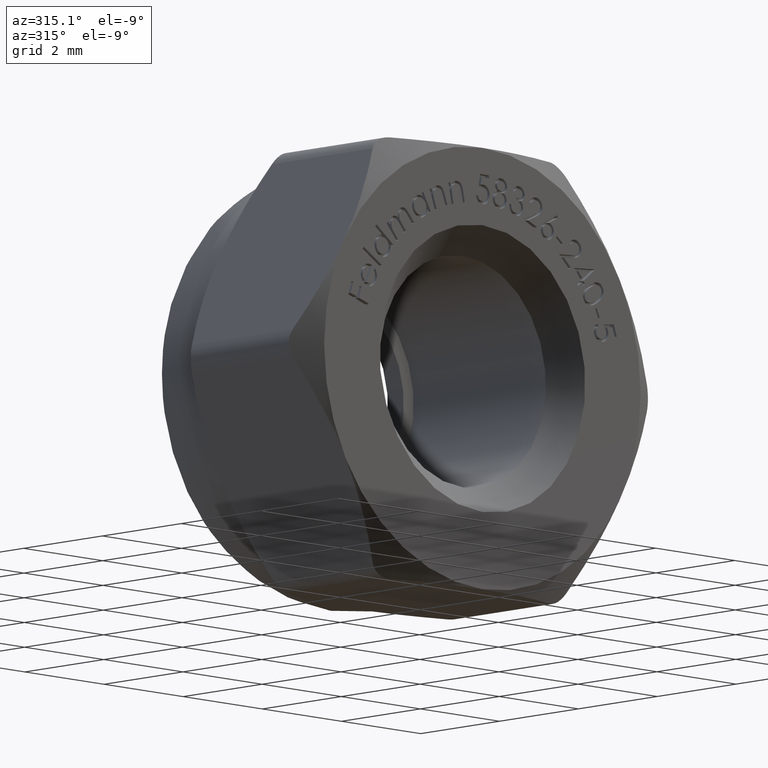
[diagram: clean part render]
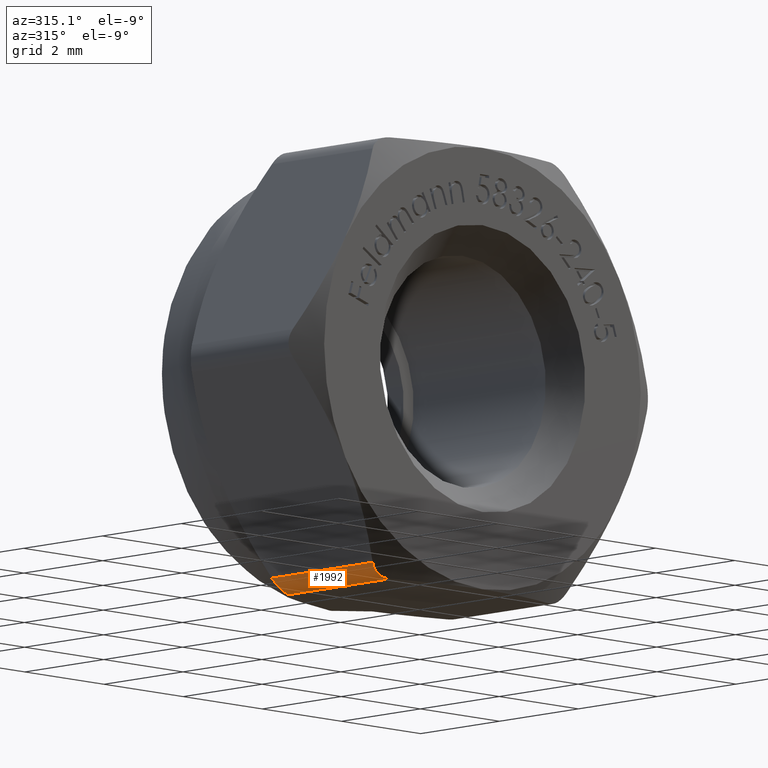
[diagram: same view with one face highlighted and labeled with its STEP entity id]
A machine part, auxiliary view. The second image highlights one B-rep face of the part: STEP entity #1992.
In plain terms, the highlighted cylindrical surface (edge-blend (fillet) strip) has radius 0.5 mm, axis along (0, -1, 0).
Its self-contained STEP definition (entity closure, byte-faithful):
#465 = CARTESIAN_POINT ( 'NONE',  ( -2.410968128182737313, 1.253323669589154310, -3.824080706558287357 ) ) ;
#565 = CYLINDRICAL_SURFACE ( 'NONE', #15314, 0.5000000000000000000 ) ;
#1171 = VECTOR ( 'NONE', #11237, 1000.000000000000000 ) ;
#1910 = CARTESIAN_POINT ( 'NONE',  ( -2.346875198377662564, 1.238983412519177429, -3.889142625994792546 ) ) ;
#1992 = ADVANCED_FACE ( 'NONE', ( #13679 ), #565, .T. ) ;
#2194 = VERTEX_POINT ( 'NONE', #8211 ) ;
#2416 = ORIENTED_EDGE ( 'NONE', *, *, #7958, .F. ) ;
#2747 = ORIENTED_EDGE ( 'NONE', *, *, #13787, .F. ) ;
#3584 = ORIENTED_EDGE ( 'NONE', *, *, #15547, .F. ) ;
#4041 = CARTESIAN_POINT ( 'NONE',  ( -2.020725942165459976, -1.279037853388634849, -3.999999999999999112 ) ) ;
#4149 = VECTOR ( 'NONE', #12335, 1000.000000000000000 ) ;
#4152 = EDGE_CURVE ( 'NONE', #11393, #7511, #8231, .T. ) ;
#6097 = DIRECTION ( 'NONE',  ( 0.000000000000000000, -1.000000000000000000, 0.000000000000000000 ) ) ;
#6612 = CARTESIAN_POINT ( 'NONE',  ( -2.453738644055909468, -1.279037853389167090, -3.749999999999999112 ) ) ;
#6769 = CARTESIAN_POINT ( 'NONE',  ( -2.410985699143779470, -1.253334233476755433, -3.824050272761001512 ) ) ;
#7191 = CARTESIAN_POINT ( 'NONE',  ( -2.453738644055909468, 1.600000000000000089, -3.749999999999999556 ) ) ;
#7490 = LINE ( 'NONE', #7191, #4149 ) ;
#7511 = VERTEX_POINT ( 'NONE', #8688 ) ;
#7955 = CARTESIAN_POINT ( 'NONE',  ( -2.193770269895944924, 1.239080998777328357, -3.977347861977764243 ) ) ;
#7958 = EDGE_CURVE ( 'NONE', #10718, #11393, #15216, .T. ) ;
#8068 = CARTESIAN_POINT ( 'NONE',  ( -2.020725942165459976, 1.279037853388634849, -3.999999999999999112 ) ) ;
#8211 = CARTESIAN_POINT ( 'NONE',  ( -2.453738644055909468, -1.279037853389167090, -3.749999999999999112 ) ) ;
#8231 = B_SPLINE_CURVE_WITH_KNOTS ( 'NONE', 3,
 ( #8068, #9314, #7955, #1910, #465, #10454 ),
 .UNSPECIFIED., .F., .F.,
 ( 4, 2, 4 ),
 ( 1.710227875093578006E-15, 0.0002643581042242318575, 0.0005287162084467528439 ),
 .UNSPECIFIED. ) ;
#8346 = CARTESIAN_POINT ( 'NONE',  ( -2.020725942163690281, 1.600000000000000089, -3.999999999999999112 ) ) ;
#8529 = CARTESIAN_POINT ( 'NONE',  ( -2.020725942163689837, 1.600000000000000089, -3.499999999999999112 ) ) ;
#8688 = CARTESIAN_POINT ( 'NONE',  ( -2.453738644055909468, 1.279037853389166868, -3.749999999999999556 ) ) ;
#9314 = CARTESIAN_POINT ( 'NONE',  ( -2.106231831987990244, 1.253334233476211201, -3.999999999999999112 ) ) ;
#9938 = B_SPLINE_CURVE_WITH_KNOTS ( 'NONE', 3,
 ( #6612, #6769, #13001, #10367, #15327, #4041 ),
 .UNSPECIFIED., .F., .F.,
 ( 4, 2, 4 ),
 ( 4.336808689942017736E-19, 0.0002643581042224723058, 0.0005287162084449441779 ),
 .UNSPECIFIED. ) ;
#10367 = CARTESIAN_POINT ( 'NONE',  ( -2.194658713865371258, -1.238983412518984695, -3.977024854303436108 ) ) ;
#10454 = CARTESIAN_POINT ( 'NONE',  ( -2.453738644055909468, 1.279037853389166868, -3.749999999999999556 ) ) ;
#10718 = VERTEX_POINT ( 'NONE', #11425 ) ;
#11237 = DIRECTION ( 'NONE',  ( -0.000000000000000000, 1.000000000000000000, -0.000000000000000000 ) ) ;
#11393 = VERTEX_POINT ( 'NONE', #11948 ) ;
#11425 = CARTESIAN_POINT ( 'NONE',  ( -2.020725942165459976, -1.279037853388634849, -3.999999999999999112 ) ) ;
#11948 = CARTESIAN_POINT ( 'NONE',  ( -2.020725942165459976, 1.279037853388634849, -3.999999999999999112 ) ) ;
#12335 = DIRECTION ( 'NONE',  ( 0.000000000000000000, -1.000000000000000000, 0.000000000000000000 ) ) ;
#12569 = EDGE_LOOP ( 'NONE', ( #15459, #2416, #3584, #2747 ) ) ;
#13001 = CARTESIAN_POINT ( 'NONE',  ( -2.347599153213907996, -1.239080998777523313, -3.888534714784619428 ) ) ;
#13679 = FACE_OUTER_BOUND ( 'NONE', #12569, .T. ) ;
#13787 = EDGE_CURVE ( 'NONE', #7511, #2194, #7490, .T. ) ;
#15216 = LINE ( 'NONE', #8346, #1171 ) ;
#15314 = AXIS2_PLACEMENT_3D ( 'NONE', #8529, #6097, #16067 ) ;
#15327 = CARTESIAN_POINT ( 'NONE',  ( -2.106266973910170925, -1.253323669589129441, -3.999999999999991562 ) ) ;
#15459 = ORIENTED_EDGE ( 'NONE', *, *, #4152, .F. ) ;
#15547 = EDGE_CURVE ( 'NONE', #2194, #10718, #9938, .T. ) ;
#16067 = DIRECTION ( 'NONE',  ( 0.000000000000000000, 0.000000000000000000, -1.000000000000000000 ) ) ;